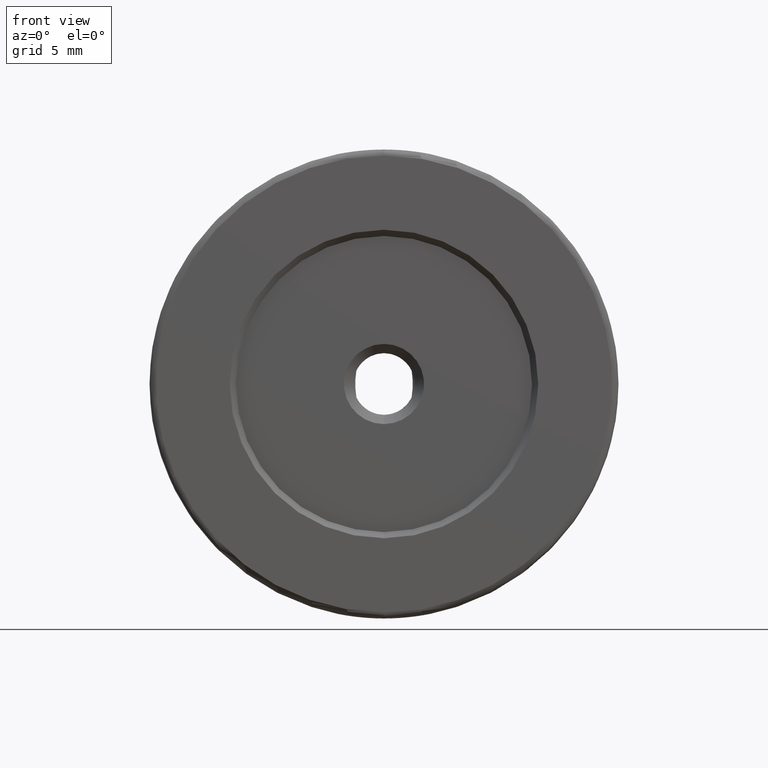
[diagram: clean part render]
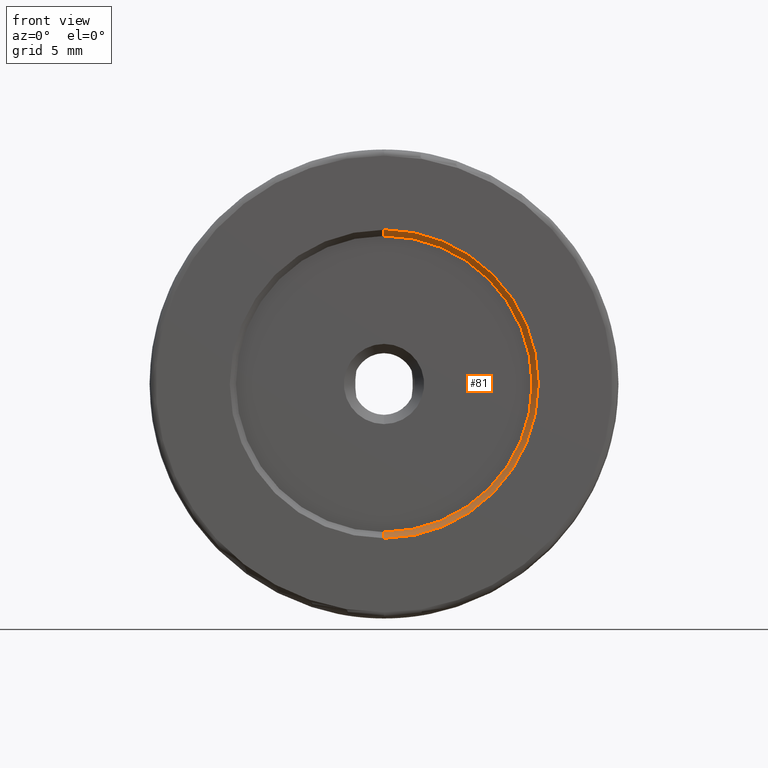
[diagram: same view with one face highlighted and labeled with its STEP entity id]
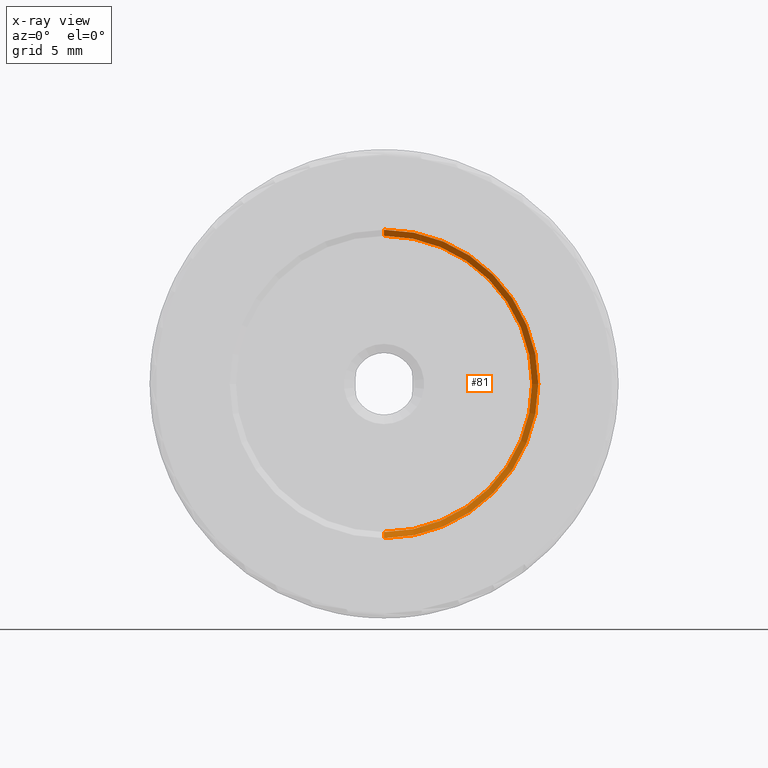
[diagram: x-ray of the same camera — body ghosted, the highlighted face saturated]
A machine part, front view. The second image highlights one B-rep face of the part: STEP entity #81.
The next image is the same camera in x-ray: the body ghosted, the highlighted face saturated — about 0% of this face is hidden behind the body in this view.
In plain terms, the highlighted conical surface has half-angle 45 deg.
Its self-contained STEP definition (entity closure, byte-faithful):
#1 = ORIENTED_EDGE ( 'NONE', *, *, #140, .F. ) ;
#6 = EDGE_CURVE ( 'NONE', #480, #568, #306, .T. ) ;
#31 = DIRECTION ( 'NONE',  ( 0.000000000000000000, 0.000000000000000000, 1.000000000000000000 ) ) ;
#32 = CONICAL_SURFACE ( 'NONE', #293, 12.50000000000000000, 0.7853981633974500554 ) ;
#56 = CARTESIAN_POINT ( 'NONE',  ( -1.530808498934191521E-15, -12.50000000000000000, -12.50000000000000000 ) ) ;
#81 = ADVANCED_FACE ( 'NONE', ( #1067 ), #32, .F. ) ;
#109 = CARTESIAN_POINT ( 'NONE',  ( -1.530808498934191521E-15, -12.50000000000000000, -12.50000000000000000 ) ) ;
#140 = EDGE_CURVE ( 'NONE', #901, #568, #1184, .T. ) ;
#213 = CARTESIAN_POINT ( 'NONE',  ( 0.000000000000000000, -12.50000000000000000, 0.000000000000000000 ) ) ;
#264 = CARTESIAN_POINT ( 'NONE',  ( 0.000000000000000000, -12.50000000000000000, 12.50000000000000000 ) ) ;
#293 = AXIS2_PLACEMENT_3D ( 'NONE', #213, #869, #998 ) ;
#306 = LINE ( 'NONE', #109, #967 ) ;
#308 = CARTESIAN_POINT ( 'NONE',  ( 0.000000000000000000, -12.50000000000000000, 12.50000000000000000 ) ) ;
#316 = CIRCLE ( 'NONE', #1210, 12.00000000000000000 ) ;
#320 = DIRECTION ( 'NONE',  ( -0.000000000000000000, 1.000000000000000000, -0.000000000000000000 ) ) ;
#328 = LINE ( 'NONE', #264, #509 ) ;
#364 = ORIENTED_EDGE ( 'NONE', *, *, #629, .T. ) ;
#472 = ORIENTED_EDGE ( 'NONE', *, *, #6, .T. ) ;
#480 = VERTEX_POINT ( 'NONE', #1178 ) ;
#503 = CARTESIAN_POINT ( 'NONE',  ( 0.000000000000000000, -12.50000000000000000, 0.000000000000000000 ) ) ;
#509 = VECTOR ( 'NONE', #641, 1000.000000000000000 ) ;
#519 = CARTESIAN_POINT ( 'NONE',  ( 0.000000000000000000, -12.00000000000000000, 0.000000000000000000 ) ) ;
#543 = EDGE_LOOP ( 'NONE', ( #364, #472, #1, #549 ) ) ;
#549 = ORIENTED_EDGE ( 'NONE', *, *, #574, .F. ) ;
#568 = VERTEX_POINT ( 'NONE', #56 ) ;
#574 = EDGE_CURVE ( 'NONE', #1213, #901, #328, .T. ) ;
#621 = DIRECTION ( 'NONE',  ( -0.000000000000000000, 1.000000000000000000, -0.000000000000000000 ) ) ;
#629 = EDGE_CURVE ( 'NONE', #1213, #480, #316, .T. ) ;
#641 = DIRECTION ( 'NONE',  ( 0.000000000000000000, -0.7071067811865463515, 0.7071067811865487940 ) ) ;
#731 = DIRECTION ( 'NONE',  ( 0.000000000000000000, 0.000000000000000000, -1.000000000000000000 ) ) ;
#869 = DIRECTION ( 'NONE',  ( -0.000000000000000000, -1.000000000000000000, -0.000000000000000000 ) ) ;
#901 = VERTEX_POINT ( 'NONE', #308 ) ;
#967 = VECTOR ( 'NONE', #1043, 1000.000000000000000 ) ;
#998 = DIRECTION ( 'NONE',  ( 0.000000000000000000, 0.000000000000000000, 1.000000000000000000 ) ) ;
#1043 = DIRECTION ( 'NONE',  ( -8.659560562354948882E-17, -0.7071067811865463515, -0.7071067811865487940 ) ) ;
#1067 = FACE_OUTER_BOUND ( 'NONE', #543, .T. ) ;
#1170 = CARTESIAN_POINT ( 'NONE',  ( 0.000000000000000000, -12.00000000000000000, 12.00000000000000000 ) ) ;
#1178 = CARTESIAN_POINT ( 'NONE',  ( -1.500192328955507734E-15, -12.00000000000000000, -12.00000000000000000 ) ) ;
#1184 = CIRCLE ( 'NONE', #1227, 12.50000000000000000 ) ;
#1210 = AXIS2_PLACEMENT_3D ( 'NONE', #519, #621, #731 ) ;
#1213 = VERTEX_POINT ( 'NONE', #1170 ) ;
#1227 = AXIS2_PLACEMENT_3D ( 'NONE', #503, #320, #31 ) ;